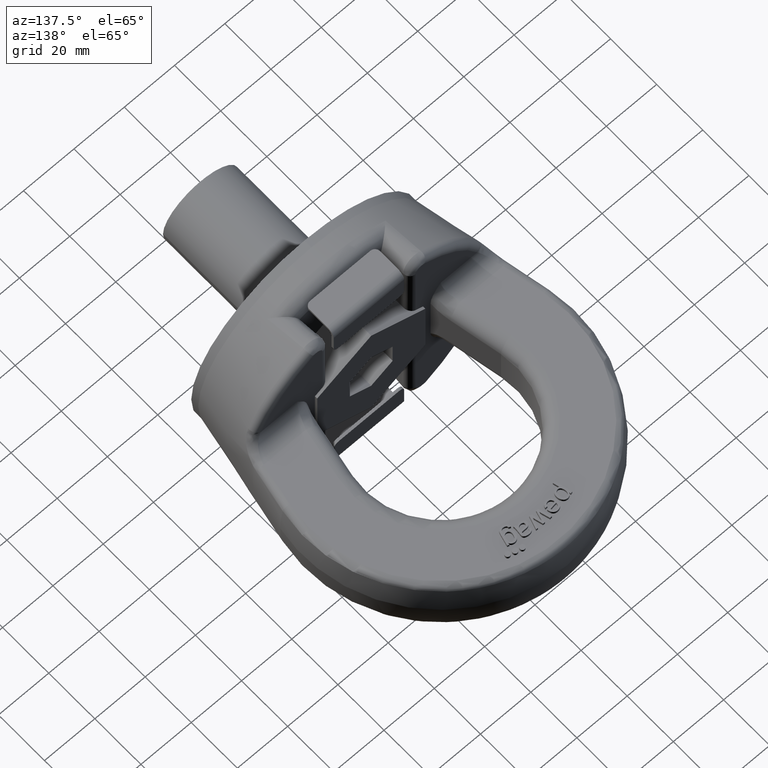
[diagram: clean part render]
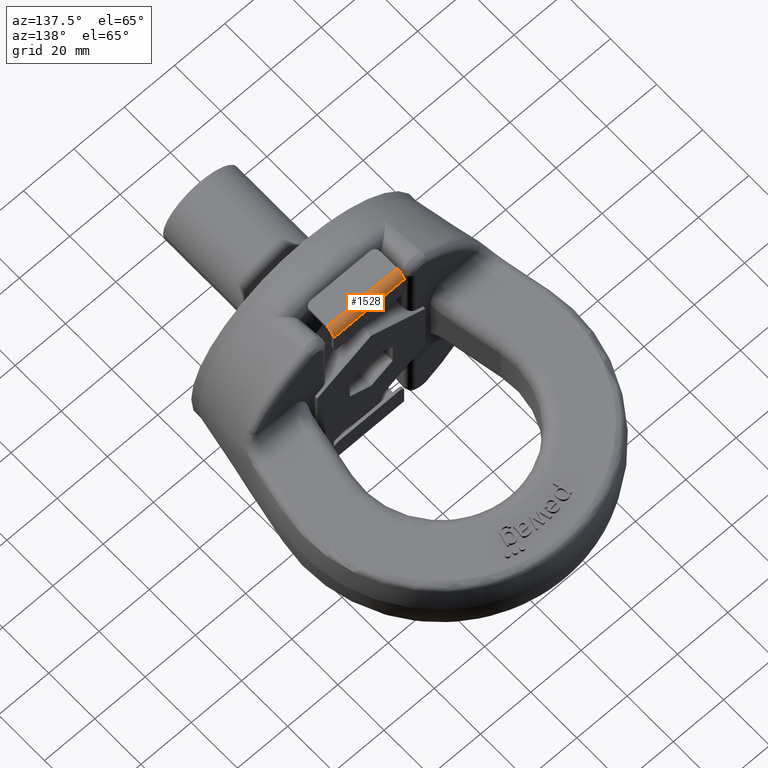
[diagram: same view with one face highlighted and labeled with its STEP entity id]
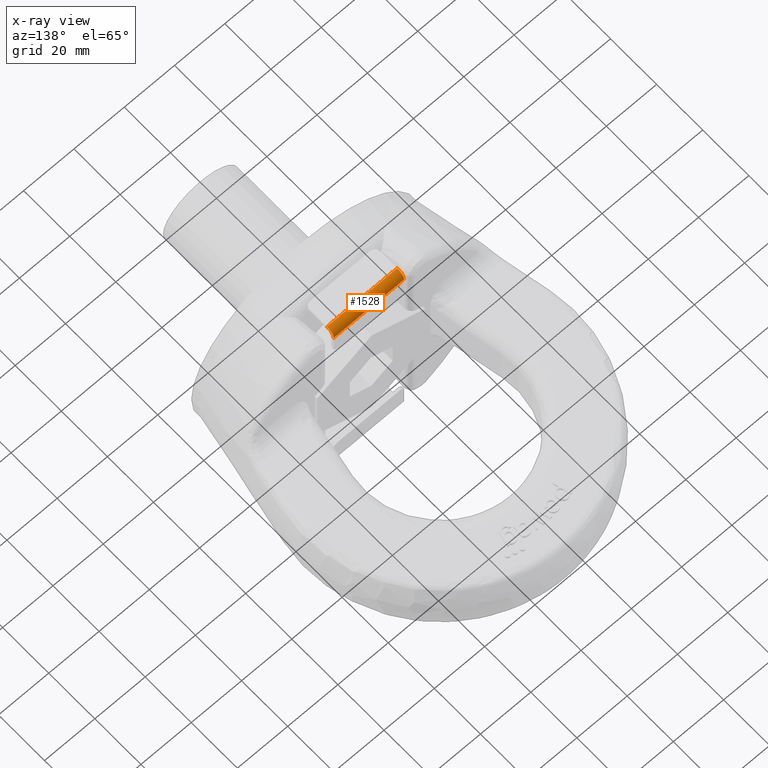
[diagram: x-ray of the same camera — body ghosted, the highlighted face saturated]
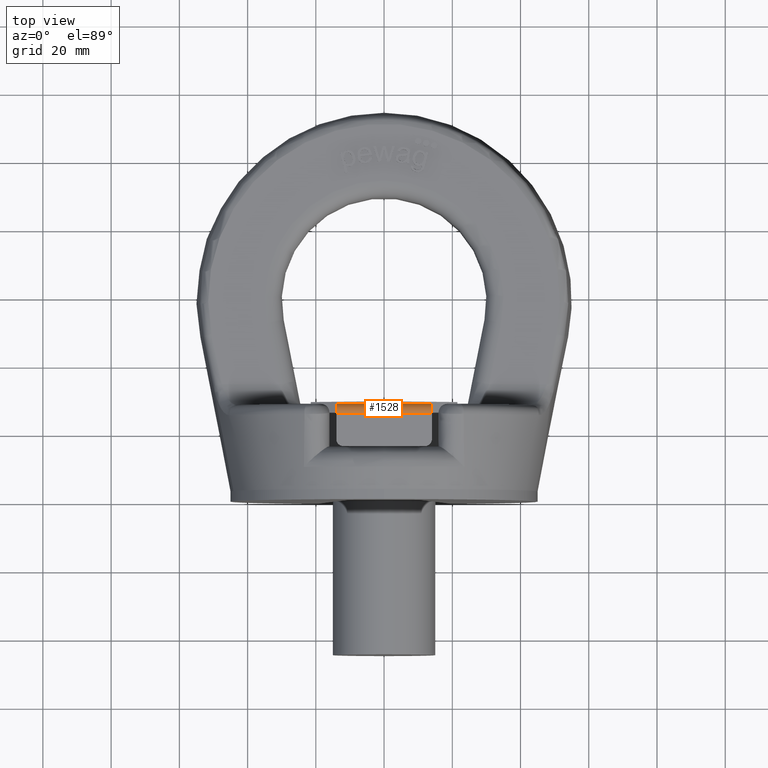
[diagram: same view with one face highlighted and labeled with its STEP entity id]
A machine part, auxiliary view. The second image highlights one B-rep face of the part: STEP entity #1528.
The next image is the same camera in x-ray: the body ghosted, the highlighted face saturated — about 0% of this face is hidden behind the body in this view.
A second angle (top view) of the same face is appended — the face is thin or edge-on in the first view.
In plain terms, the highlighted cylindrical surface (edge-blend (fillet) strip) has radius 3 mm, axis along (-1, 0, 0).
Its self-contained STEP definition (entity closure, byte-faithful):
#1078=CYLINDRICAL_SURFACE('',#5348,3.);
#1289=FACE_OUTER_BOUND('',#2066,.T.);
#1528=ADVANCED_FACE('',(#1289),#1078,.T.);
#1733=CIRCLE('',#5331,3.);
#1734=CIRCLE('',#5334,3.);
#2066=EDGE_LOOP('',(#3780,#3781,#3782,#3783));
#2340=LINE('',#9544,#2676);
#2341=LINE('',#9547,#2677);
#2676=VECTOR('',#6152,1.);
#2677=VECTOR('',#6157,1.);
#3780=ORIENTED_EDGE('',*,*,#4797,.T.);
#3781=ORIENTED_EDGE('',*,*,#4815,.F.);
#3782=ORIENTED_EDGE('',*,*,#4789,.F.);
#3783=ORIENTED_EDGE('',*,*,#4813,.T.);
#4218=VERTEX_POINT('',#9483);
#4225=VERTEX_POINT('',#9496);
#4233=VERTEX_POINT('',#9514);
#4234=VERTEX_POINT('',#9516);
#4789=EDGE_CURVE('',#4225,#4218,#1733,.T.);
#4797=EDGE_CURVE('',#4234,#4233,#1734,.T.);
#4813=EDGE_CURVE('',#4225,#4234,#2340,.T.);
#4815=EDGE_CURVE('',#4218,#4233,#2341,.T.);
#5331=AXIS2_PLACEMENT_3D('',#9497,#6106,#6107);
#5334=AXIS2_PLACEMENT_3D('',#9515,#6119,#6120);
#5348=AXIS2_PLACEMENT_3D('',#9548,#6158,#6159);
#6106=DIRECTION('',(1.,0.,0.));
#6107=DIRECTION('',(0.,0.,1.));
#6119=DIRECTION('',(1.,0.,0.));
#6120=DIRECTION('',(0.,0.,1.));
#6152=DIRECTION('',(-1.,0.,0.));
#6157=DIRECTION('',(-1.,0.,0.));
#6158=DIRECTION('',(-1.,0.,0.));
#6159=DIRECTION('',(0.,0.,1.));
#9483=CARTESIAN_POINT('',(14.,25.,45.));
#9496=CARTESIAN_POINT('',(14.,28.,42.));
#9497=CARTESIAN_POINT('',(14.,25.,42.));
#9514=CARTESIAN_POINT('',(-14.,25.,45.));
#9515=CARTESIAN_POINT('',(-14.,25.,42.));
#9516=CARTESIAN_POINT('',(-14.,28.,42.));
#9544=CARTESIAN_POINT('',(14.,28.,42.));
#9547=CARTESIAN_POINT('',(14.,25.,45.));
#9548=CARTESIAN_POINT('',(14.,25.,42.));